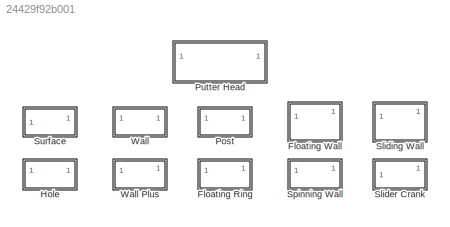
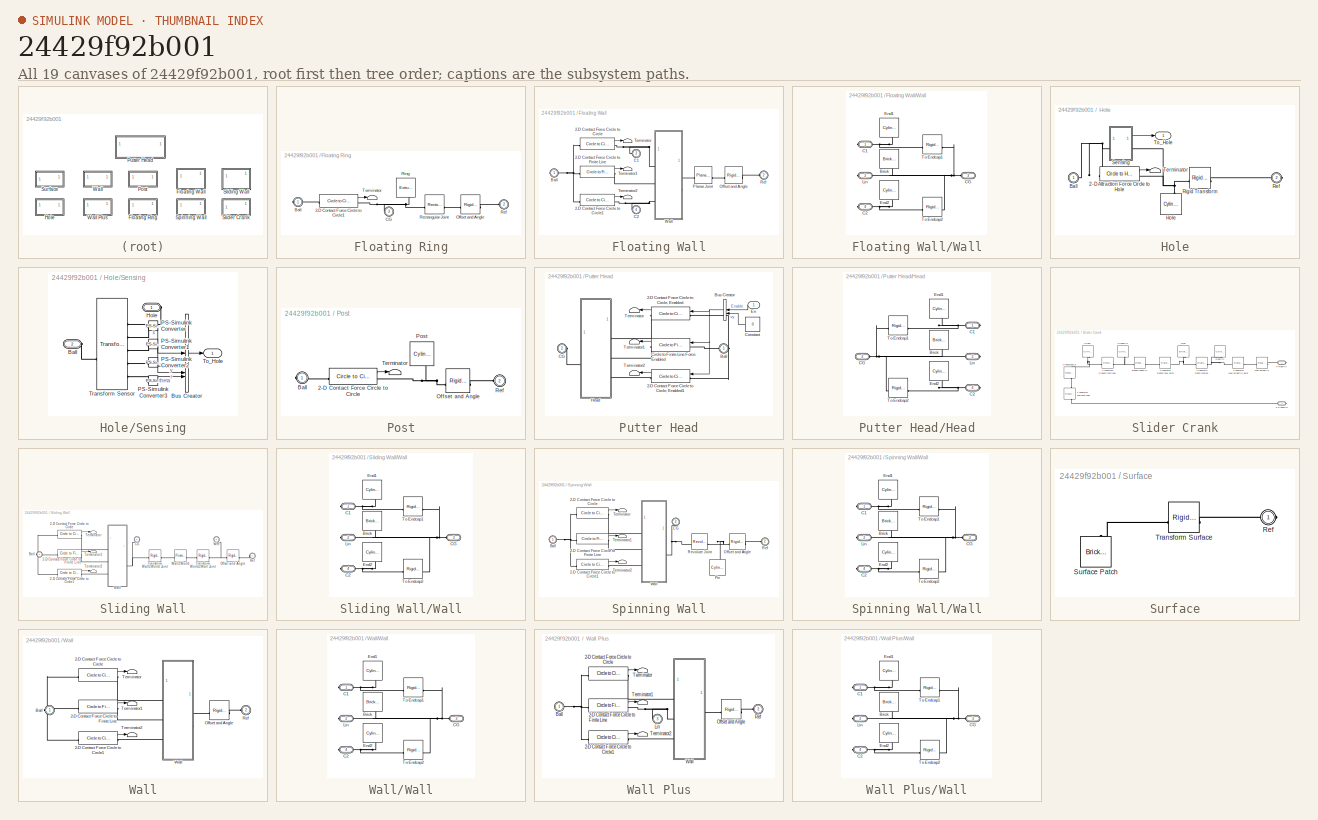
[diagram: thumbnail index - all 19 canvases of the model, root first then tree order]
MODEL slx_24429f92b001
KIND library
CONFIG AbsTol = auto
CONFIG EnableMultiTasking = on
CONFIG FixedStep = auto
CONFIG MaxStep = auto
CONFIG MinStep = auto
CONFIG RelTol = 1e-3
CONFIG SampleTimeConstraint = Unconstrained
CONFIG SolverName = ode45
CONFIG StartTime = 0.0
CONFIG StopTime = 10.0
BLOCK [SubSystem] Floating Ring
BLOCK [Reference] Floating Ring/2-D Contact Force Circle to Circle1  REF=Contact_Forces_Lib/2D/Circle to Circle Force
  NameLocation = top
  SourceBlock = Contact_Forces_Lib/2D/Circle to Circle Force
  SourceProductName = Simscape Multibody Contact Forces Library
  SourceType = Circle to Circle Force
BLOCK [PMIOPort] Floating Ring/Ball
  Side = Right
BLOCK [PMIOPort] Floating Ring/CG
  Port = 3
  Side = Left
BLOCK [Reference] Floating Ring/Offset and Angle  REF=sm_lib/Frames and
Transforms/Rigid
Transform
  SourceBlock = sm_lib/Frames and\nTransforms/Rigid\nTransform
  SourceType = Rigid\nTransform
BLOCK [Reference] Floating Ring/Rectangular Joint  REF=sm_lib/Joints/Rectangular
Joint
  SourceBlock = sm_lib/Joints/Rectangular\nJoint
  SourceType = Rectangular\nJoint
BLOCK [PMIOPort] Floating Ring/Ref
  Port = 2
  Side = Left
BLOCK [Reference] Floating Ring/Ring  REF=sm_lib/Body Elements/Extruded Solid
  NameLocation = right
  SourceBlock = sm_lib/Body Elements/Extruded Solid
  SourceType = Extruded Solid
BLOCK [Terminator] Floating Ring/Terminator
BLOCK [SubSystem] Floating Wall
BLOCK [Reference] Floating Wall/2-D Contact Force Circle to Circle  REF=Contact_Forces_Lib/2D/Circle to Circle Force
  NameLocation = top
  SourceBlock = Contact_Forces_Lib/2D/Circle to Circle Force
  SourceProductName = Simscape Multibody Contact Forces Library
  SourceType = Circle to Circle Force
BLOCK [Reference] Floating Wall/2-D Contact Force Circle to Circle1  REF=Contact_Forces_Lib/2D/Circle to Circle Force
  NameLocation = top
  SourceBlock = Contact_Forces_Lib/2D/Circle to Circle Force
  SourceProductName = Simscape Multibody Contact Forces Library
  SourceType = Circle to Circle Force
BLOCK [Reference] Floating Wall/2-D Contact Force Circle to Finite Line  REF=Contact_Forces_Lib/2D/Circle to Finite Line Force
  NameLocation = top
  SourceBlock = Contact_Forces_Lib/2D/Circle to Finite Line Force
  SourceProductName = Simscape Multibody Contact Forces Library
  SourceType = Circle on Finite Line Force
BLOCK [PMIOPort] Floating Wall/Ball
  Side = Right
BLOCK [PMIOPort] Floating Wall/C1
  Port = 3
  Side = Left
BLOCK [PMIOPort] Floating Wall/C2
  Port = 4
  Side = Left
BLOCK [Reference] Floating Wall/Offset and Angle  REF=sm_lib/Frames and
Transforms/Rigid
Transform
  SourceBlock = sm_lib/Frames and\nTransforms/Rigid\nTransform
  SourceType = Rigid\nTransform
BLOCK [Reference] Floating Wall/Planar Joint  REF=sm_lib/Joints/Planar Joint
  NameLocation = top
  SourceBlock = sm_lib/Joints/Planar Joint
  SourceType = Planar Joint
BLOCK [PMIOPort] Floating Wall/Ref
  Port = 2
  Side = Left
BLOCK [Terminator] Floating Wall/Terminator
BLOCK [Terminator] Floating Wall/Terminator1
BLOCK [Terminator] Floating Wall/Terminator2
BLOCK [SubSystem] Floating Wall/Wall
BLOCK [Reference] Floating Wall/Wall/Brick  REF=sm_lib/Body Elements/Brick Solid
  NameLocation = right
  SourceBlock = sm_lib/Body Elements/Brick Solid
  SourceType = Brick Solid
BLOCK [PMIOPort] Floating Wall/Wall/C1
  Side = Right
BLOCK [PMIOPort] Floating Wall/Wall/C2
  Port = 4
  Side = Right
BLOCK [PMIOPort] Floating Wall/Wall/CG
  NameLocation = top
  Port = 3
  Side = Left
BLOCK [Reference] Floating Wall/Wall/End1  REF=sm_lib/Body Elements/Cylindrical Solid
  NameLocation = right
  SourceBlock = sm_lib/Body Elements/Cylindrical Solid
  SourceType = Cylindrical Solid
BLOCK [Reference] Floating Wall/Wall/End2  REF=sm_lib/Body Elements/Cylindrical Solid
  NameLocation = right
  SourceBlock = sm_lib/Body Elements/Cylindrical Solid
  SourceType = Cylindrical Solid
BLOCK [PMIOPort] Floating Wall/Wall/Lin
  Port = 2
  Side = Right
BLOCK [Reference] Floating Wall/Wall/To Endcap1  REF=sm_lib/Frames and
Transforms/Rigid
Transform
  NameLocation = top
  SourceBlock = sm_lib/Frames and\nTransforms/Rigid\nTransform
  SourceType = Rigid\nTransform
BLOCK [Reference] Floating Wall/Wall/To Endcap2  REF=sm_lib/Frames and
Transforms/Rigid
Transform
  NameLocation = top
  SourceBlock = sm_lib/Frames and\nTransforms/Rigid\nTransform
  SourceType = Rigid\nTransform
BLOCK [SubSystem] Hole
BLOCK [Reference] Hole/2-D Attraction Force Circle to Hole  REF=Contact_Forces_Lib/2D/Circle to Hole Force
  SourceBlock = Contact_Forces_Lib/2D/Circle to Hole Force
  SourceProductName = Simscape Multibody Contact Forces Library
  SourceType = Circle to Hole Force
BLOCK [PMIOPort] Hole/Ball
  Side = Left
BLOCK [Reference] Hole/Hole  REF=sm_lib/Body Elements/Cylindrical Solid
  NameLocation = right
  SourceBlock = sm_lib/Body Elements/Cylindrical Solid
  SourceType = Cylindrical Solid
BLOCK [PMIOPort] Hole/Ref
  Port = 2
  Side = Right
BLOCK [Reference] Hole/Rigid Transform  REF=sm_lib/Frames and
Transforms/Rigid
Transform
  NameLocation = top
  SourceBlock = sm_lib/Frames and\nTransforms/Rigid\nTransform
  SourceType = Rigid\nTransform
BLOCK [SubSystem] Hole/Sensing
  NameLocation = top
BLOCK [PMIOPort] Hole/Sensing/Ball
  Port = 2
  Side = Left
BLOCK [BusCreator] Hole/Sensing/Bus Creator
  DisplayOption = bar
  InheritFromInputs = on
  Inputs = 4
BLOCK [PMIOPort] Hole/Sensing/Hole
  NameLocation = top
  Side = Right
BLOCK [Reference] Hole/Sensing/PS-Simulink Converter  REF=nesl_utility/PS-Simulink
Converter
  SourceBlock = nesl_utility/PS-Simulink\nConverter
  SourceType = PS-Simulink\nConverter
BLOCK [Reference] Hole/Sensing/PS-Simulink Converter1  REF=nesl_utility/PS-Simulink
Converter
  SourceBlock = nesl_utility/PS-Simulink\nConverter
  SourceType = PS-Simulink\nConverter
BLOCK [Reference] Hole/Sensing/PS-Simulink Converter2  REF=nesl_utility/PS-Simulink
Converter
  SourceBlock = nesl_utility/PS-Simulink\nConverter
  SourceType = PS-Simulink\nConverter
BLOCK [Reference] Hole/Sensing/PS-Simulink Converter3  REF=nesl_utility/PS-Simulink
Converter
  SourceBlock = nesl_utility/PS-Simulink\nConverter
  SourceType = PS-Simulink\nConverter
BLOCK [Outport] Hole/Sensing/To_Hole
  VectorParamsAs1DForOutWhenUnconnected = off
BLOCK [Reference] Hole/Sensing/Transform Sensor  REF=sm_lib/Frames and
Transforms/Transform
Sensor
  SourceBlock = sm_lib/Frames and\nTransforms/Transform\nSensor
  SourceType = Transform\nSensor
BLOCK [Terminator] Hole/Terminator
BLOCK [Outport] Hole/To_Hole
  VectorParamsAs1DForOutWhenUnconnected = off
BLOCK [SubSystem] Post
BLOCK [Reference] Post/2-D Contact Force Circle to Circle  REF=Contact_Forces_Lib/2D/Circle to Circle Force
  NameLocation = top
  SourceBlock = Contact_Forces_Lib/2D/Circle to Circle Force
  SourceProductName = Simscape Multibody Contact Forces Library
  SourceType = Circle to Circle Force
BLOCK [PMIOPort] Post/Ball
  Side = Right
BLOCK [Reference] Post/Offset and Angle  REF=sm_lib/Frames and
Transforms/Rigid
Transform
  SourceBlock = sm_lib/Frames and\nTransforms/Rigid\nTransform
  SourceType = Rigid\nTransform
BLOCK [Reference] Post/Post  REF=sm_lib/Body Elements/Cylindrical Solid
  NameLocation = right
  SourceBlock = sm_lib/Body Elements/Cylindrical Solid
  SourceType = Cylindrical Solid
BLOCK [PMIOPort] Post/Ref
  Port = 2
  Side = Left
BLOCK [Terminator] Post/Terminator
BLOCK [SubSystem] Putter Head
BLOCK [Reference] Putter Head/2-D Contact Force Circle to Circle, Enabled  REF=Contact_Forces_Lib/2D/Circle to Circle Force
Enabled
  SourceBlock = Contact_Forces_Lib/2D/Circle to Circle Force\nEnabled
  SourceProductName = Simscape Multibody Contact Forces Library
  SourceType = Circle to Circle Force Enabled
BLOCK [Reference] Putter Head/2-D Contact Force Circle to Circle, Enabled1  REF=Contact_Forces_Lib/2D/Circle to Circle Force
Enabled
  SourceBlock = Contact_Forces_Lib/2D/Circle to Circle Force\nEnabled
  SourceProductName = Simscape Multibody Contact Forces Library
  SourceType = Circle to Circle Force Enabled
BLOCK [PMIOPort] Putter Head/Ball
  NameLocation = top
  Side = Right
BLOCK [BusCreator] Putter Head/Bus Creator
  DisplayOption = bar
  InheritFromInputs = on
  Inputs = 2
  NameLocation = top
BLOCK [PMIOPort] Putter Head/CG
  Port = 2
  Side = Left
BLOCK [Reference] Putter Head/Circle to Finite Line Force Enabled  REF=Contact_Forces_Lib/2D/Circle to Finite Line Force
Enabled
  SourceBlock = Contact_Forces_Lib/2D/Circle to Finite Line Force\nEnabled
  SourceProductName = Simscape Multibody Contact Forces Library
  SourceType = Circle on Finite Line Force Enabled
BLOCK [Constant] Putter Head/Constant
  Value = 0
BLOCK [Inport] Putter Head/En
BLOCK [SubSystem] Putter Head/Head
BLOCK [Reference] Putter Head/Head/Brick  REF=sm_lib/Body Elements/Brick Solid
  NameLocation = right
  SourceBlock = sm_lib/Body Elements/Brick Solid
  SourceType = Brick Solid
BLOCK [PMIOPort] Putter Head/Head/C1
  Side = Right
BLOCK [PMIOPort] Putter Head/Head/C2
  Port = 4
  Side = Right
BLOCK [PMIOPort] Putter Head/Head/CG
  Port = 3
  Side = Left
BLOCK [Reference] Putter Head/Head/End1  REF=sm_lib/Body Elements/Cylindrical Solid
  NameLocation = right
  SourceBlock = sm_lib/Body Elements/Cylindrical Solid
  SourceType = Cylindrical Solid
BLOCK [Reference] Putter Head/Head/End2  REF=sm_lib/Body Elements/Cylindrical Solid
  NameLocation = right
  SourceBlock = sm_lib/Body Elements/Cylindrical Solid
  SourceType = Cylindrical Solid
BLOCK [PMIOPort] Putter Head/Head/Lin
  Port = 2
  Side = Right
BLOCK [Reference] Putter Head/Head/To Endcap1  REF=sm_lib/Frames and
Transforms/Rigid
Transform
  NameLocation = top
  SourceBlock = sm_lib/Frames and\nTransforms/Rigid\nTransform
  SourceType = Rigid\nTransform
BLOCK [Reference] Putter Head/Head/To Endcap2  REF=sm_lib/Frames and
Transforms/Rigid
Transform
  NameLocation = top
  SourceBlock = sm_lib/Frames and\nTransforms/Rigid\nTransform
  SourceType = Rigid\nTransform
BLOCK [Terminator] Putter Head/Terminator
  NameLocation = top
BLOCK [Terminator] Putter Head/Terminator1
  NameLocation = top
BLOCK [Terminator] Putter Head/Terminator2
  NameLocation = top
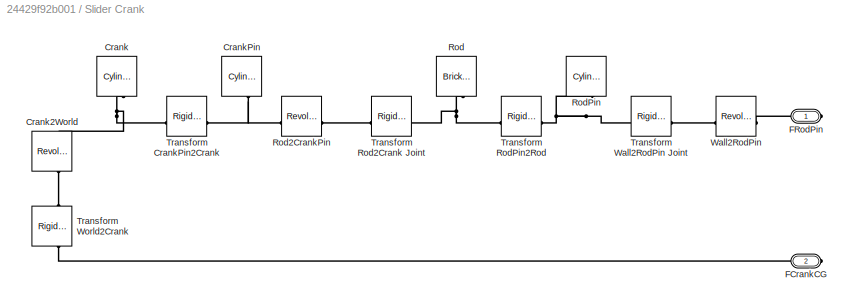
BLOCK [SubSystem] Slider Crank
BLOCK [Reference] Slider Crank/Crank  REF=sm_lib/Body Elements/Cylindrical Solid
  NameLocation = left
  SourceBlock = sm_lib/Body Elements/Cylindrical Solid
  SourceType = Cylindrical Solid
BLOCK [Reference] Slider Crank/Crank2World  REF=sm_lib/Joints/Revolute Joint
  NameLocation = right
  SourceBlock = sm_lib/Joints/Revolute Joint
  SourceType = Revolute Joint
BLOCK [Reference] Slider Crank/CrankPin  REF=sm_lib/Body Elements/Cylindrical Solid
  NameLocation = left
  SourceBlock = sm_lib/Body Elements/Cylindrical Solid
  SourceType = Cylindrical Solid
BLOCK [PMIOPort] Slider Crank/FCrankCG
  Port = 2
  Side = Right
BLOCK [PMIOPort] Slider Crank/FRodPin
  Side = Right
BLOCK [Reference] Slider Crank/Rod  REF=sm_lib/Body Elements/Brick Solid
  NameLocation = left
  SourceBlock = sm_lib/Body Elements/Brick Solid
  SourceType = Brick Solid
BLOCK [Reference] Slider Crank/Rod2CrankPin  REF=sm_lib/Joints/Revolute Joint
  SourceBlock = sm_lib/Joints/Revolute Joint
  SourceType = Revolute Joint
BLOCK [Reference] Slider Crank/RodPin  REF=sm_lib/Body Elements/Cylindrical Solid
  NameLocation = left
  SourceBlock = sm_lib/Body Elements/Cylindrical Solid
  SourceType = Cylindrical Solid
BLOCK [Reference] Slider Crank/Transform CrankPin2Crank  REF=sm_lib/Frames and
Transforms/Rigid
Transform
  SourceBlock = sm_lib/Frames and\nTransforms/Rigid\nTransform
  SourceType = Rigid\nTransform
BLOCK [Reference] Slider Crank/Transform Rod2Crank Joint  REF=sm_lib/Frames and
Transforms/Rigid
Transform
  SourceBlock = sm_lib/Frames and\nTransforms/Rigid\nTransform
  SourceType = Rigid\nTransform
BLOCK [Reference] Slider Crank/Transform RodPin2Rod  REF=sm_lib/Frames and
Transforms/Rigid
Transform
  SourceBlock = sm_lib/Frames and\nTransforms/Rigid\nTransform
  SourceType = Rigid\nTransform
BLOCK [Reference] Slider Crank/Transform Wall2RodPin Joint  REF=sm_lib/Frames and
Transforms/Rigid
Transform
  SourceBlock = sm_lib/Frames and\nTransforms/Rigid\nTransform
  SourceType = Rigid\nTransform
BLOCK [Reference] Slider Crank/Transform World2Crank  REF=sm_lib/Frames and
Transforms/Rigid
Transform
  NameLocation = right
  SourceBlock = sm_lib/Frames and\nTransforms/Rigid\nTransform
  SourceType = Rigid\nTransform
BLOCK [Reference] Slider Crank/Wall2RodPin  REF=sm_lib/Joints/Revolute Joint
  NameLocation = top
  SourceBlock = sm_lib/Joints/Revolute Joint
  SourceType = Revolute Joint
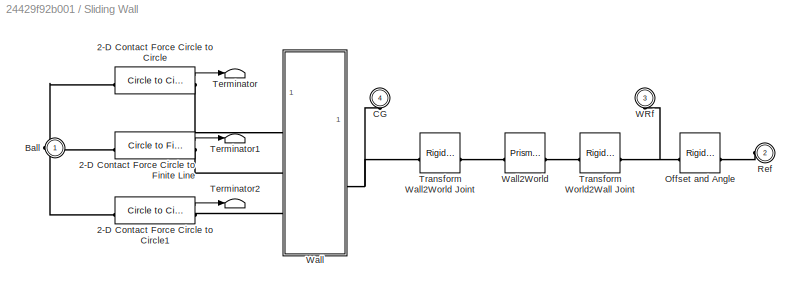
BLOCK [SubSystem] Sliding Wall
BLOCK [Reference] Sliding Wall/2-D Contact Force Circle to Circle  REF=Contact_Forces_Lib/2D/Circle to Circle Force
  NameLocation = top
  SourceBlock = Contact_Forces_Lib/2D/Circle to Circle Force
  SourceProductName = Simscape Multibody Contact Forces Library
  SourceType = Circle to Circle Force
BLOCK [Reference] Sliding Wall/2-D Contact Force Circle to Circle1  REF=Contact_Forces_Lib/2D/Circle to Circle Force
  NameLocation = top
  SourceBlock = Contact_Forces_Lib/2D/Circle to Circle Force
  SourceProductName = Simscape Multibody Contact Forces Library
  SourceType = Circle to Circle Force
BLOCK [Reference] Sliding Wall/2-D Contact Force Circle to Finite Line  REF=Contact_Forces_Lib/2D/Circle to Finite Line Force
  NameLocation = top
  SourceBlock = Contact_Forces_Lib/2D/Circle to Finite Line Force
  SourceProductName = Simscape Multibody Contact Forces Library
  SourceType = Circle on Finite Line Force
BLOCK [PMIOPort] Sliding Wall/Ball
  Side = Right
BLOCK [PMIOPort] Sliding Wall/CG
  NameLocation = right
  Port = 4
  Side = Left
BLOCK [Reference] Sliding Wall/Offset and Angle  REF=sm_lib/Frames and
Transforms/Rigid
Transform
  SourceBlock = sm_lib/Frames and\nTransforms/Rigid\nTransform
  SourceType = Rigid\nTransform
BLOCK [PMIOPort] Sliding Wall/Ref
  Port = 2
  Side = Left
BLOCK [Terminator] Sliding Wall/Terminator
BLOCK [Terminator] Sliding Wall/Terminator1
BLOCK [Terminator] Sliding Wall/Terminator2
BLOCK [Reference] Sliding Wall/Transform Wall2World Joint  REF=sm_lib/Frames and
Transforms/Rigid
Transform
  SourceBlock = sm_lib/Frames and\nTransforms/Rigid\nTransform
  SourceType = Rigid\nTransform
BLOCK [Reference] Sliding Wall/Transform World2Wall Joint  REF=sm_lib/Frames and
Transforms/Rigid
Transform
  SourceBlock = sm_lib/Frames and\nTransforms/Rigid\nTransform
  SourceType = Rigid\nTransform
BLOCK [PMIOPort] Sliding Wall/WRf
  NameLocation = right
  Port = 3
  Side = Left
BLOCK [SubSystem] Sliding Wall/Wall
BLOCK [Reference] Sliding Wall/Wall/Brick  REF=sm_lib/Body Elements/Brick Solid
  NameLocation = right
  SourceBlock = sm_lib/Body Elements/Brick Solid
  SourceType = Brick Solid
BLOCK [PMIOPort] Sliding Wall/Wall/C1
  Side = Right
BLOCK [PMIOPort] Sliding Wall/Wall/C2
  Port = 4
  Side = Right
BLOCK [PMIOPort] Sliding Wall/Wall/CG
  NameLocation = top
  Port = 3
  Side = Left
BLOCK [Reference] Sliding Wall/Wall/End1  REF=sm_lib/Body Elements/Cylindrical Solid
  NameLocation = right
  SourceBlock = sm_lib/Body Elements/Cylindrical Solid
  SourceType = Cylindrical Solid
BLOCK [Reference] Sliding Wall/Wall/End2  REF=sm_lib/Body Elements/Cylindrical Solid
  NameLocation = right
  SourceBlock = sm_lib/Body Elements/Cylindrical Solid
  SourceType = Cylindrical Solid
BLOCK [PMIOPort] Sliding Wall/Wall/Lin
  Port = 2
  Side = Right
BLOCK [Reference] Sliding Wall/Wall/To Endcap1  REF=sm_lib/Frames and
Transforms/Rigid
Transform
  NameLocation = top
  SourceBlock = sm_lib/Frames and\nTransforms/Rigid\nTransform
  SourceType = Rigid\nTransform
BLOCK [Reference] Sliding Wall/Wall/To Endcap2  REF=sm_lib/Frames and
Transforms/Rigid
Transform
  NameLocation = top
  SourceBlock = sm_lib/Frames and\nTransforms/Rigid\nTransform
  SourceType = Rigid\nTransform
BLOCK [Reference] Sliding Wall/Wall2World  REF=sm_lib/Joints/Prismatic
Joint
  SourceBlock = sm_lib/Joints/Prismatic\nJoint
  SourceType = Prismatic\nJoint
BLOCK [SubSystem] Spinning Wall
BLOCK [Reference] Spinning Wall/2-D Contact Force Circle to Circle  REF=Contact_Forces_Lib/2D/Circle to Circle Force
  NameLocation = top
  SourceBlock = Contact_Forces_Lib/2D/Circle to Circle Force
  SourceProductName = Simscape Multibody Contact Forces Library
  SourceType = Circle to Circle Force
BLOCK [Reference] Spinning Wall/2-D Contact Force Circle to Circle1  REF=Contact_Forces_Lib/2D/Circle to Circle Force
  NameLocation = top
  SourceBlock = Contact_Forces_Lib/2D/Circle to Circle Force
  SourceProductName = Simscape Multibody Contact Forces Library
  SourceType = Circle to Circle Force
BLOCK [Reference] Spinning Wall/2-D Contact Force Circle to Finite Line  REF=Contact_Forces_Lib/2D/Circle to Finite Line Force
  NameLocation = top
  SourceBlock = Contact_Forces_Lib/2D/Circle to Finite Line Force
  SourceProductName = Simscape Multibody Contact Forces Library
  SourceType = Circle on Finite Line Force
BLOCK [PMIOPort] Spinning Wall/Ball
  Side = Right
BLOCK [PMIOPort] Spinning Wall/CG
  NameLocation = right
  Port = 3
  Side = Left
BLOCK [Reference] Spinning Wall/Offset and Angle  REF=sm_lib/Frames and
Transforms/Rigid
Transform
  SourceBlock = sm_lib/Frames and\nTransforms/Rigid\nTransform
  SourceType = Rigid\nTransform
BLOCK [Reference] Spinning Wall/Pin  REF=sm_lib/Body Elements/Cylindrical Solid
  NameLocation = right
  SourceBlock = sm_lib/Body Elements/Cylindrical Solid
  SourceType = Cylindrical Solid
BLOCK [PMIOPort] Spinning Wall/Ref
  Port = 2
  Side = Left
BLOCK [Reference] Spinning Wall/Revolute Joint  REF=sm_lib/Joints/Revolute Joint
  NameLocation = top
  SourceBlock = sm_lib/Joints/Revolute Joint
  SourceType = Revolute Joint
BLOCK [Terminator] Spinning Wall/Terminator
BLOCK [Terminator] Spinning Wall/Terminator1
BLOCK [Terminator] Spinning Wall/Terminator2
BLOCK [SubSystem] Spinning Wall/Wall
BLOCK [Reference] Spinning Wall/Wall/Brick  REF=sm_lib/Body Elements/Brick Solid
  NameLocation = right
  SourceBlock = sm_lib/Body Elements/Brick Solid
  SourceType = Brick Solid
BLOCK [PMIOPort] Spinning Wall/Wall/C1
  Side = Right
BLOCK [PMIOPort] Spinning Wall/Wall/C2
  Port = 4
  Side = Right
BLOCK [PMIOPort] Spinning Wall/Wall/CG
  Port = 3
  Side = Left
BLOCK [Reference] Spinning Wall/Wall/End1  REF=sm_lib/Body Elements/Cylindrical Solid
  NameLocation = right
  SourceBlock = sm_lib/Body Elements/Cylindrical Solid
  SourceType = Cylindrical Solid
BLOCK [Reference] Spinning Wall/Wall/End2  REF=sm_lib/Body Elements/Cylindrical Solid
  NameLocation = right
  SourceBlock = sm_lib/Body Elements/Cylindrical Solid
  SourceType = Cylindrical Solid
BLOCK [PMIOPort] Spinning Wall/Wall/Lin
  Port = 2
  Side = Right
BLOCK [Reference] Spinning Wall/Wall/To Endcap1  REF=sm_lib/Frames and
Transforms/Rigid
Transform
  NameLocation = top
  SourceBlock = sm_lib/Frames and\nTransforms/Rigid\nTransform
  SourceType = Rigid\nTransform
BLOCK [Reference] Spinning Wall/Wall/To Endcap2  REF=sm_lib/Frames and
Transforms/Rigid
Transform
  NameLocation = top
  SourceBlock = sm_lib/Frames and\nTransforms/Rigid\nTransform
  SourceType = Rigid\nTransform
BLOCK [SubSystem] Surface
BLOCK [PMIOPort] Surface/Ref
  Side = Right
BLOCK [Reference] Surface/Surface Patch  REF=sm_lib/Body Elements/Brick Solid
  NameLocation = right
  SourceBlock = sm_lib/Body Elements/Brick Solid
  SourceType = Brick Solid
BLOCK [Reference] Surface/Transform Surface  REF=sm_lib/Frames and
Transforms/Rigid
Transform
  SourceBlock = sm_lib/Frames and\nTransforms/Rigid\nTransform
  SourceType = Rigid\nTransform
BLOCK [SubSystem] Wall
BLOCK [SubSystem] Wall Plus
BLOCK [Reference] Wall Plus/2-D Contact Force Circle to Circle  REF=Contact_Forces_Lib/2D/Circle to Circle Force
  NameLocation = top
  SourceBlock = Contact_Forces_Lib/2D/Circle to Circle Force
  SourceProductName = Simscape Multibody Contact Forces Library
  SourceType = Circle to Circle Force
BLOCK [Reference] Wall Plus/2-D Contact Force Circle to Circle1  REF=Contact_Forces_Lib/2D/Circle to Circle Force
  NameLocation = top
  SourceBlock = Contact_Forces_Lib/2D/Circle to Circle Force
  SourceProductName = Simscape Multibody Contact Forces Library
  SourceType = Circle to Circle Force
BLOCK [Reference] Wall Plus/2-D Contact Force Circle to Finite Line  REF=Contact_Forces_Lib/2D/Circle to Finite Line Force
  NameLocation = top
  SourceBlock = Contact_Forces_Lib/2D/Circle to Finite Line Force
  SourceProductName = Simscape Multibody Contact Forces Library
  SourceType = Circle on Finite Line Force
BLOCK [PMIOPort] Wall Plus/Ball
  Side = Right
BLOCK [PMIOPort] Wall Plus/Lin
  Port = 3
  Side = Left
BLOCK [Reference] Wall Plus/Offset and Angle  REF=sm_lib/Frames and
Transforms/Rigid
Transform
  SourceBlock = sm_lib/Frames and\nTransforms/Rigid\nTransform
  SourceType = Rigid\nTransform
BLOCK [PMIOPort] Wall Plus/Ref
  Port = 2
  Side = Left
BLOCK [Terminator] Wall Plus/Terminator
BLOCK [Terminator] Wall Plus/Terminator1
BLOCK [Terminator] Wall Plus/Terminator2
BLOCK [SubSystem] Wall Plus/Wall
BLOCK [Reference] Wall Plus/Wall/Brick  REF=sm_lib/Body Elements/Brick Solid
  NameLocation = right
  SourceBlock = sm_lib/Body Elements/Brick Solid
  SourceType = Brick Solid
BLOCK [PMIOPort] Wall Plus/Wall/C1
  Side = Right
BLOCK [PMIOPort] Wall Plus/Wall/C2
  Port = 4
  Side = Right
BLOCK [PMIOPort] Wall Plus/Wall/CG
  Port = 3
  Side = Left
BLOCK [Reference] Wall Plus/Wall/End1  REF=sm_lib/Body Elements/Cylindrical Solid
  NameLocation = right
  SourceBlock = sm_lib/Body Elements/Cylindrical Solid
  SourceType = Cylindrical Solid
BLOCK [Reference] Wall Plus/Wall/End2  REF=sm_lib/Body Elements/Cylindrical Solid
  NameLocation = right
  SourceBlock = sm_lib/Body Elements/Cylindrical Solid
  SourceType = Cylindrical Solid
BLOCK [PMIOPort] Wall Plus/Wall/Lin
  Port = 2
  Side = Right
BLOCK [Reference] Wall Plus/Wall/To Endcap1  REF=sm_lib/Frames and
Transforms/Rigid
Transform
  NameLocation = top
  SourceBlock = sm_lib/Frames and\nTransforms/Rigid\nTransform
  SourceType = Rigid\nTransform
BLOCK [Reference] Wall Plus/Wall/To Endcap2  REF=sm_lib/Frames and
Transforms/Rigid
Transform
  NameLocation = top
  SourceBlock = sm_lib/Frames and\nTransforms/Rigid\nTransform
  SourceType = Rigid\nTransform
BLOCK [Reference] Wall/2-D Contact Force Circle to Circle  REF=Contact_Forces_Lib/2D/Circle to Circle Force
  NameLocation = top
  SourceBlock = Contact_Forces_Lib/2D/Circle to Circle Force
  SourceProductName = Simscape Multibody Contact Forces Library
  SourceType = Circle to Circle Force
BLOCK [Reference] Wall/2-D Contact Force Circle to Circle1  REF=Contact_Forces_Lib/2D/Circle to Circle Force
  NameLocation = top
  SourceBlock = Contact_Forces_Lib/2D/Circle to Circle Force
  SourceProductName = Simscape Multibody Contact Forces Library
  SourceType = Circle to Circle Force
BLOCK [Reference] Wall/2-D Contact Force Circle to Finite Line  REF=Contact_Forces_Lib/2D/Circle to Finite Line Force
  NameLocation = top
  SourceBlock = Contact_Forces_Lib/2D/Circle to Finite Line Force
  SourceProductName = Simscape Multibody Contact Forces Library
  SourceType = Circle on Finite Line Force
BLOCK [PMIOPort] Wall/Ball
  Side = Right
BLOCK [Reference] Wall/Offset and Angle  REF=sm_lib/Frames and
Transforms/Rigid
Transform
  SourceBlock = sm_lib/Frames and\nTransforms/Rigid\nTransform
  SourceType = Rigid\nTransform
BLOCK [PMIOPort] Wall/Ref
  Port = 2
  Side = Left
BLOCK [Terminator] Wall/Terminator
BLOCK [Terminator] Wall/Terminator1
BLOCK [Terminator] Wall/Terminator2
BLOCK [SubSystem] Wall/Wall
BLOCK [Reference] Wall/Wall/Brick  REF=sm_lib/Body Elements/Brick Solid
  NameLocation = right
  SourceBlock = sm_lib/Body Elements/Brick Solid
  SourceType = Brick Solid
BLOCK [PMIOPort] Wall/Wall/C1
  Side = Right
BLOCK [PMIOPort] Wall/Wall/C2
  Port = 4
  Side = Right
BLOCK [PMIOPort] Wall/Wall/CG
  Port = 3
  Side = Left
BLOCK [Reference] Wall/Wall/End1  REF=sm_lib/Body Elements/Cylindrical Solid
  NameLocation = right
  SourceBlock = sm_lib/Body Elements/Cylindrical Solid
  SourceType = Cylindrical Solid
BLOCK [Reference] Wall/Wall/End2  REF=sm_lib/Body Elements/Cylindrical Solid
  NameLocation = right
  SourceBlock = sm_lib/Body Elements/Cylindrical Solid
  SourceType = Cylindrical Solid
BLOCK [PMIOPort] Wall/Wall/Lin
  Port = 2
  Side = Right
BLOCK [Reference] Wall/Wall/To Endcap1  REF=sm_lib/Frames and
Transforms/Rigid
Transform
  NameLocation = top
  SourceBlock = sm_lib/Frames and\nTransforms/Rigid\nTransform
  SourceType = Rigid\nTransform
BLOCK [Reference] Wall/Wall/To Endcap2  REF=sm_lib/Frames and
Transforms/Rigid
Transform
  NameLocation = top
  SourceBlock = sm_lib/Frames and\nTransforms/Rigid\nTransform
  SourceType = Rigid\nTransform
LINE Floating Ring/2-D Contact Force Circle to Circle1:1 -> Floating Ring/Terminator:1
LINE Floating Wall/2-D Contact Force Circle to Circle1:1 -> Floating Wall/Terminator2:1
LINE Floating Wall/2-D Contact Force Circle to Circle:1 -> Floating Wall/Terminator:1
LINE Floating Wall/2-D Contact Force Circle to Finite Line:1 -> Floating Wall/Terminator1:1
LINE Hole/2-D Attraction Force Circle to Hole:1 -> Hole/Terminator:1
LINE Hole/Sensing/Bus Creator:1 -> Hole/Sensing/To_Hole:1
LINE Hole/Sensing/PS-Simulink Converter1:1 -> Hole/Sensing/Bus Creator:2
LINE Hole/Sensing/PS-Simulink Converter2:1 -> Hole/Sensing/Bus Creator:3
LINE Hole/Sensing/PS-Simulink Converter3:1 -> Hole/Sensing/Bus Creator:4
LINE Hole/Sensing/PS-Simulink Converter:1 -> Hole/Sensing/Bus Creator:1
LINE Hole/Sensing:1 -> Hole/To_Hole:1
LINE Post/2-D Contact Force Circle to Circle:1 -> Post/Terminator:1
LINE Putter Head/2-D Contact Force Circle to Circle, Enabled1:1 -> Putter Head/Terminator2:1
LINE Putter Head/2-D Contact Force Circle to Circle, Enabled:1 -> Putter Head/Terminator:1
NET Putter Head/Bus Creator:1 -> Putter Head/2-D Contact Force Circle to Circle, Enabled1:1, Putter Head/2-D Contact Force Circle to Circle, Enabled:1, Putter Head/Circle to Finite Line Force Enabled:1
LINE Putter Head/Circle to Finite Line Force Enabled:1 -> Putter Head/Terminator1:1
LINE Putter Head/Constant:1 -> Putter Head/Bus Creator:2
LINE Putter Head/En:1 -> Putter Head/Bus Creator:1
LINE Sliding Wall/2-D Contact Force Circle to Circle1:1 -> Sliding Wall/Terminator2:1
LINE Sliding Wall/2-D Contact Force Circle to Circle:1 -> Sliding Wall/Terminator:1
LINE Sliding Wall/2-D Contact Force Circle to Finite Line:1 -> Sliding Wall/Terminator1:1
LINE Spinning Wall/2-D Contact Force Circle to Circle1:1 -> Spinning Wall/Terminator2:1
LINE Spinning Wall/2-D Contact Force Circle to Circle:1 -> Spinning Wall/Terminator:1
LINE Spinning Wall/2-D Contact Force Circle to Finite Line:1 -> Spinning Wall/Terminator1:1
LINE Wall Plus/2-D Contact Force Circle to Circle1:1 -> Wall Plus/Terminator2:1
LINE Wall Plus/2-D Contact Force Circle to Circle:1 -> Wall Plus/Terminator:1
LINE Wall Plus/2-D Contact Force Circle to Finite Line:1 -> Wall Plus/Terminator1:1
LINE Wall/2-D Contact Force Circle to Circle1:1 -> Wall/Terminator2:1
LINE Wall/2-D Contact Force Circle to Circle:1 -> Wall/Terminator:1
LINE Wall/2-D Contact Force Circle to Finite Line:1 -> Wall/Terminator1:1
PLINE Floating Ring/2-D Contact Force Circle to Circle1:LConn1 -- Floating Ring/Ball:RConn1
PNET net1: Floating Ring/2-D Contact Force Circle to Circle1:RConn1 -- Floating Ring/CG:RConn1 -- Floating Ring/Rectangular Joint:LConn1 -- Floating Ring/Ring:RConn1
PLINE Floating Ring/Offset and Angle:LConn1 -- Floating Ring/Ref:RConn1
PLINE Floating Ring/Offset and Angle:RConn1 -- Floating Ring/Rectangular Joint:RConn1
PNET net2: Floating Wall/2-D Contact Force Circle to Circle1:LConn1 -- Floating Wall/2-D Contact Force Circle to Circle:LConn1 -- Floating Wall/2-D Contact Force Circle to Finite Line:LConn1 -- Floating Wall/Ball:RConn1
PNET net3: Floating Wall/2-D Contact Force Circle to Circle1:RConn1 -- Floating Wall/C2:RConn1 -- Floating Wall/Wall:RConn3
PNET net4: Floating Wall/2-D Contact Force Circle to Circle:RConn1 -- Floating Wall/C1:RConn1 -- Floating Wall/Wall:RConn1
PLINE Floating Wall/2-D Contact Force Circle to Finite Line:RConn1 -- Floating Wall/Wall:RConn2
PLINE Floating Wall/Offset and Angle:LConn1 -- Floating Wall/Ref:RConn1
PLINE Floating Wall/Offset and Angle:RConn1 -- Floating Wall/Planar Joint:LConn1
PLINE Floating Wall/Planar Joint:RConn1 -- Floating Wall/Wall:LConn1
PNET net5: Floating Wall/Wall/Brick:RConn1 -- Floating Wall/Wall/CG:RConn1 -- Floating Wall/Wall/Lin:RConn1 -- Floating Wall/Wall/To Endcap1:LConn1 -- Floating Wall/Wall/To Endcap2:LConn1
PNET net6: Floating Wall/Wall/C1:RConn1 -- Floating Wall/Wall/End1:RConn1 -- Floating Wall/Wall/To Endcap1:RConn1
PNET net7: Floating Wall/Wall/C2:RConn1 -- Floating Wall/Wall/End2:RConn1 -- Floating Wall/Wall/To Endcap2:RConn1
PNET net8: Hole/2-D Attraction Force Circle to Hole:LConn1 -- Hole/Ball:RConn1 -- Hole/Sensing:LConn1
PNET net9: Hole/2-D Attraction Force Circle to Hole:RConn1 -- Hole/Hole:RConn1 -- Hole/Rigid Transform:RConn1 -- Hole/Sensing:RConn1
PLINE Hole/Ref:RConn1 -- Hole/Rigid Transform:LConn1
PLINE Hole/Sensing/Ball:RConn1 -- Hole/Sensing/Transform Sensor:LConn1
PLINE Hole/Sensing/Hole:RConn1 -- Hole/Sensing/Transform Sensor:RConn1
PLINE Hole/Sensing/PS-Simulink Converter1:LConn1 -- Hole/Sensing/Transform Sensor:RConn3
PLINE Hole/Sensing/PS-Simulink Converter2:LConn1 -- Hole/Sensing/Transform Sensor:RConn4
PLINE Hole/Sensing/PS-Simulink Converter3:LConn1 -- Hole/Sensing/Transform Sensor:RConn5
PLINE Hole/Sensing/PS-Simulink Converter:LConn1 -- Hole/Sensing/Transform Sensor:RConn2
PLINE Post/2-D Contact Force Circle to Circle:LConn1 -- Post/Ball:RConn1
PNET net10: Post/2-D Contact Force Circle to Circle:RConn1 -- Post/Offset and Angle:RConn1 -- Post/Post:RConn1
PLINE Post/Offset and Angle:LConn1 -- Post/Ref:RConn1
PNET net11: Putter Head/2-D Contact Force Circle to Circle, Enabled1:LConn1 -- Putter Head/2-D Contact Force Circle to Circle, Enabled:LConn1 -- Putter Head/Ball:RConn1 -- Putter Head/Circle to Finite Line Force Enabled:LConn1
PLINE Putter Head/2-D Contact Force Circle to Circle, Enabled1:RConn1 -- Putter Head/Head:RConn3
PLINE Putter Head/2-D Contact Force Circle to Circle, Enabled:RConn1 -- Putter Head/Head:RConn1
PLINE Putter Head/CG:RConn1 -- Putter Head/Head:LConn1
PLINE Putter Head/Circle to Finite Line Force Enabled:RConn1 -- Putter Head/Head:RConn2
PNET net12: Putter Head/Head/Brick:RConn1 -- Putter Head/Head/CG:RConn1 -- Putter Head/Head/Lin:RConn1 -- Putter Head/Head/To Endcap1:LConn1 -- Putter Head/Head/To Endcap2:LConn1
PNET net13: Putter Head/Head/C1:RConn1 -- Putter Head/Head/End1:RConn1 -- Putter Head/Head/To Endcap1:RConn1
PNET net14: Putter Head/Head/C2:RConn1 -- Putter Head/Head/End2:RConn1 -- Putter Head/Head/To Endcap2:RConn1
PNET net15: Slider Crank/Crank2World:LConn1 -- Slider Crank/Crank:RConn1 -- Slider Crank/Transform CrankPin2Crank:RConn1
PLINE Slider Crank/Crank2World:RConn1 -- Slider Crank/Transform World2Crank:RConn1
PNET net16: Slider Crank/CrankPin:RConn1 -- Slider Crank/Rod2CrankPin:RConn1 -- Slider Crank/Transform CrankPin2Crank:LConn1
PLINE Slider Crank/FCrankCG:RConn1 -- Slider Crank/Transform World2Crank:LConn1
PLINE Slider Crank/FRodPin:RConn1 -- Slider Crank/Wall2RodPin:LConn1
PLINE Slider Crank/Rod2CrankPin:LConn1 -- Slider Crank/Transform Rod2Crank Joint:RConn1
PNET net17: Slider Crank/Rod:RConn1 -- Slider Crank/Transform Rod2Crank Joint:LConn1 -- Slider Crank/Transform RodPin2Rod:RConn1
PNET net18: Slider Crank/RodPin:RConn1 -- Slider Crank/Transform RodPin2Rod:LConn1 -- Slider Crank/Transform Wall2RodPin Joint:RConn1
PLINE Slider Crank/Transform Wall2RodPin Joint:LConn1 -- Slider Crank/Wall2RodPin:RConn1
PNET net19: Sliding Wall/2-D Contact Force Circle to Circle1:LConn1 -- Sliding Wall/2-D Contact Force Circle to Circle:LConn1 -- Sliding Wall/2-D Contact Force Circle to Finite Line:LConn1 -- Sliding Wall/Ball:RConn1
PLINE Sliding Wall/2-D Contact Force Circle to Circle1:RConn1 -- Sliding Wall/Wall:RConn3
PLINE Sliding Wall/2-D Contact Force Circle to Circle:RConn1 -- Sliding Wall/Wall:RConn1
PLINE Sliding Wall/2-D Contact Force Circle to Finite Line:RConn1 -- Sliding Wall/Wall:RConn2
PNET net20: Sliding Wall/CG:RConn1 -- Sliding Wall/Transform Wall2World Joint:LConn1 -- Sliding Wall/Wall:LConn1
PLINE Sliding Wall/Offset and Angle:LConn1 -- Sliding Wall/Ref:RConn1
PNET net21: Sliding Wall/Offset and Angle:RConn1 -- Sliding Wall/Transform World2Wall Joint:RConn1 -- Sliding Wall/WRf:RConn1
PLINE Sliding Wall/Transform Wall2World Joint:RConn1 -- Sliding Wall/Wall2World:LConn1
PLINE Sliding Wall/Transform World2Wall Joint:LConn1 -- Sliding Wall/Wall2World:RConn1
PNET net22: Sliding Wall/Wall/Brick:RConn1 -- Sliding Wall/Wall/CG:RConn1 -- Sliding Wall/Wall/Lin:RConn1 -- Sliding Wall/Wall/To Endcap1:LConn1 -- Sliding Wall/Wall/To Endcap2:LConn1
PNET net23: Sliding Wall/Wall/C1:RConn1 -- Sliding Wall/Wall/End1:RConn1 -- Sliding Wall/Wall/To Endcap1:RConn1
PNET net24: Sliding Wall/Wall/C2:RConn1 -- Sliding Wall/Wall/End2:RConn1 -- Sliding Wall/Wall/To Endcap2:RConn1
PNET net25: Spinning Wall/2-D Contact Force Circle to Circle1:LConn1 -- Spinning Wall/2-D Contact Force Circle to Circle:LConn1 -- Spinning Wall/2-D Contact Force Circle to Finite Line:LConn1 -- Spinning Wall/Ball:RConn1
PLINE Spinning Wall/2-D Contact Force Circle to Circle1:RConn1 -- Spinning Wall/Wall:RConn3
PLINE Spinning Wall/2-D Contact Force Circle to Circle:RConn1 -- Spinning Wall/Wall:RConn1
PLINE Spinning Wall/2-D Contact Force Circle to Finite Line:RConn1 -- Spinning Wall/Wall:RConn2
PNET net26: Spinning Wall/CG:RConn1 -- Spinning Wall/Revolute Joint:RConn1 -- Spinning Wall/Wall:LConn1
PLINE Spinning Wall/Offset and Angle:LConn1 -- Spinning Wall/Ref:RConn1
PNET net27: Spinning Wall/Offset and Angle:RConn1 -- Spinning Wall/Pin:RConn1 -- Spinning Wall/Revolute Joint:LConn1
PNET net28: Spinning Wall/Wall/Brick:RConn1 -- Spinning Wall/Wall/CG:RConn1 -- Spinning Wall/Wall/Lin:RConn1 -- Spinning Wall/Wall/To Endcap1:LConn1 -- Spinning Wall/Wall/To Endcap2:LConn1
PNET net29: Spinning Wall/Wall/C1:RConn1 -- Spinning Wall/Wall/End1:RConn1 -- Spinning Wall/Wall/To Endcap1:RConn1
PNET net30: Spinning Wall/Wall/C2:RConn1 -- Spinning Wall/Wall/End2:RConn1 -- Spinning Wall/Wall/To Endcap2:RConn1
PLINE Surface/Ref:RConn1 -- Surface/Transform Surface:LConn1
PLINE Surface/Surface Patch:RConn1 -- Surface/Transform Surface:RConn1
PNET net31: Wall Plus/2-D Contact Force Circle to Circle1:LConn1 -- Wall Plus/2-D Contact Force Circle to Circle:LConn1 -- Wall Plus/2-D Contact Force Circle to Finite Line:LConn1 -- Wall Plus/Ball:RConn1
PLINE Wall Plus/2-D Contact Force Circle to Circle1:RConn1 -- Wall Plus/Wall:RConn3
PLINE Wall Plus/2-D Contact Force Circle to Circle:RConn1 -- Wall Plus/Wall:RConn1
PNET net32: Wall Plus/2-D Contact Force Circle to Finite Line:RConn1 -- Wall Plus/Lin:RConn1 -- Wall Plus/Wall:RConn2
PLINE Wall Plus/Offset and Angle:LConn1 -- Wall Plus/Ref:RConn1
PLINE Wall Plus/Offset and Angle:RConn1 -- Wall Plus/Wall:LConn1
PNET net33: Wall Plus/Wall/Brick:RConn1 -- Wall Plus/Wall/CG:RConn1 -- Wall Plus/Wall/Lin:RConn1 -- Wall Plus/Wall/To Endcap1:LConn1 -- Wall Plus/Wall/To Endcap2:LConn1
PNET net34: Wall Plus/Wall/C1:RConn1 -- Wall Plus/Wall/End1:RConn1 -- Wall Plus/Wall/To Endcap1:RConn1
PNET net35: Wall Plus/Wall/C2:RConn1 -- Wall Plus/Wall/End2:RConn1 -- Wall Plus/Wall/To Endcap2:RConn1
PNET net36: Wall/2-D Contact Force Circle to Circle1:LConn1 -- Wall/2-D Contact Force Circle to Circle:LConn1 -- Wall/2-D Contact Force Circle to Finite Line:LConn1 -- Wall/Ball:RConn1
PLINE Wall/2-D Contact Force Circle to Circle1:RConn1 -- Wall/Wall:RConn3
PLINE Wall/2-D Contact Force Circle to Circle:RConn1 -- Wall/Wall:RConn1
PLINE Wall/2-D Contact Force Circle to Finite Line:RConn1 -- Wall/Wall:RConn2
PLINE Wall/Offset and Angle:LConn1 -- Wall/Ref:RConn1
PLINE Wall/Offset and Angle:RConn1 -- Wall/Wall:LConn1
PNET net37: Wall/Wall/Brick:RConn1 -- Wall/Wall/CG:RConn1 -- Wall/Wall/Lin:RConn1 -- Wall/Wall/To Endcap1:LConn1 -- Wall/Wall/To Endcap2:LConn1
PNET net38: Wall/Wall/C1:RConn1 -- Wall/Wall/End1:RConn1 -- Wall/Wall/To Endcap1:RConn1
PNET net39: Wall/Wall/C2:RConn1 -- Wall/Wall/End2:RConn1 -- Wall/Wall/To Endcap2:RConn1
note: NET lines group one-source signal fan-out (src -> all destinations, sorted); 1:1 wires keep LINE; PNET lines group multi-terminal physical nets as a canonical sorted terminal list (undirected conserving connections); 2-terminal nets keep the pairwise PLINE form
